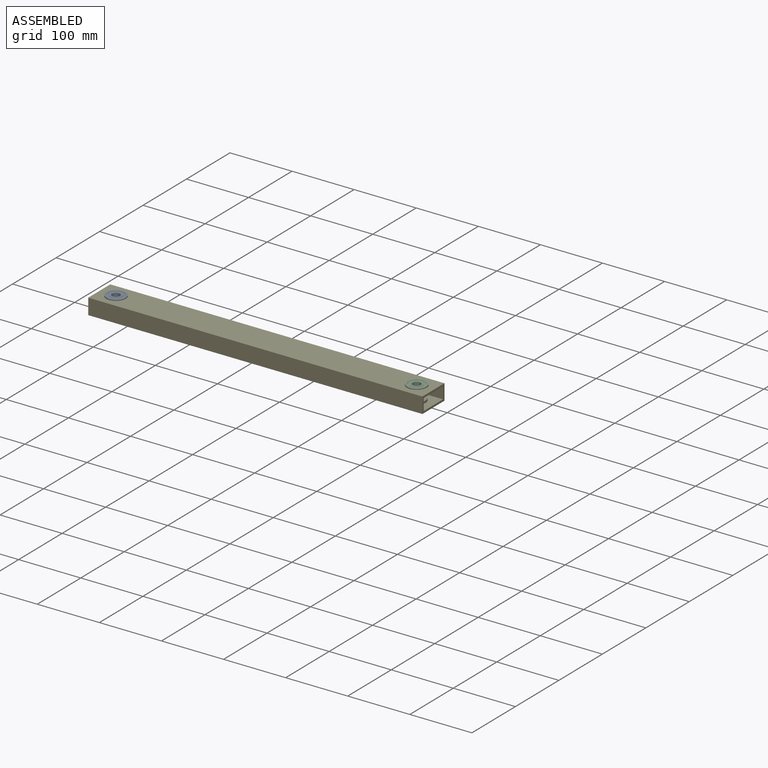
[diagram: assembled view]
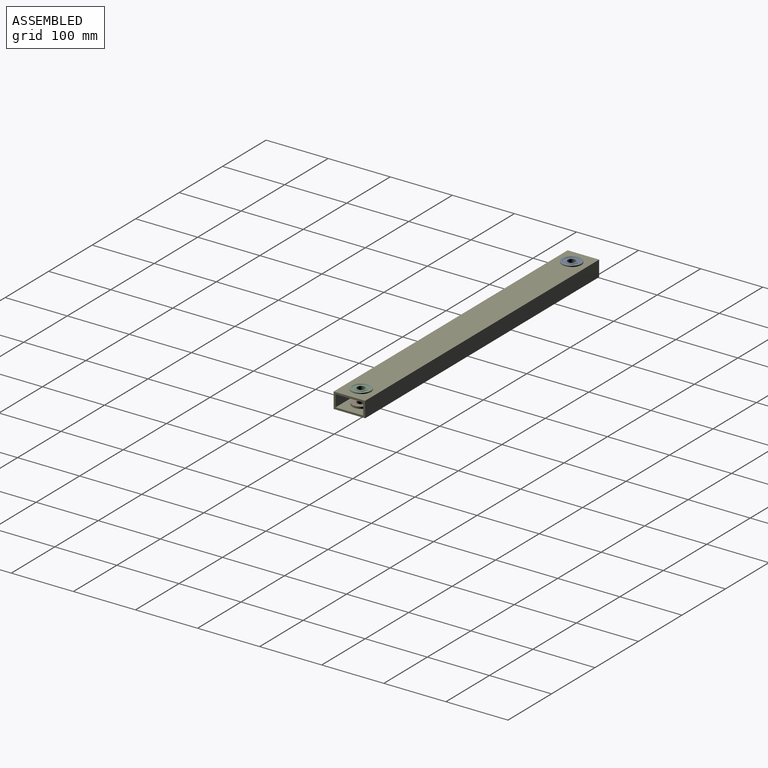
[diagram: assembled view, second angle]
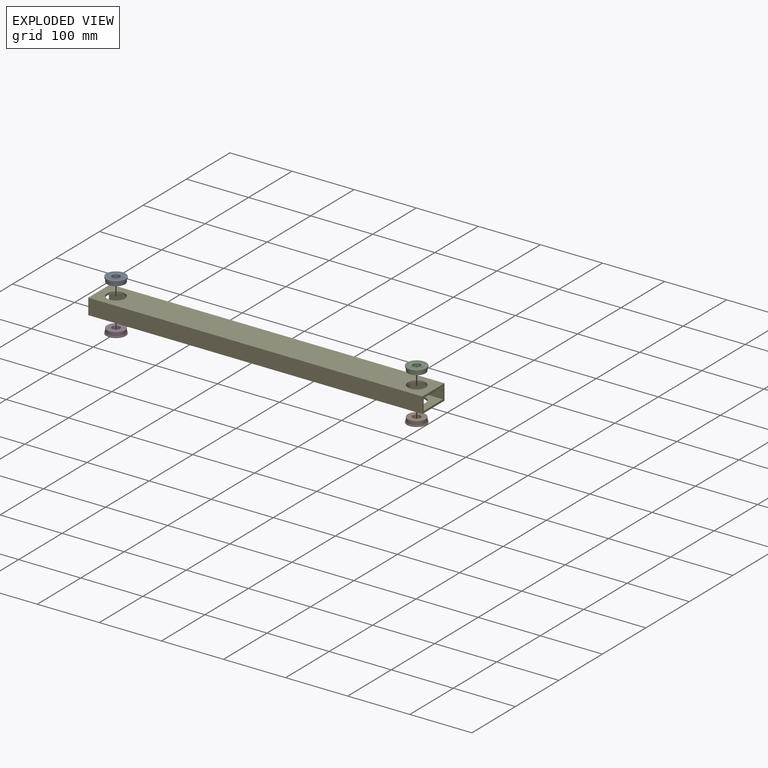
[diagram: exploded view]
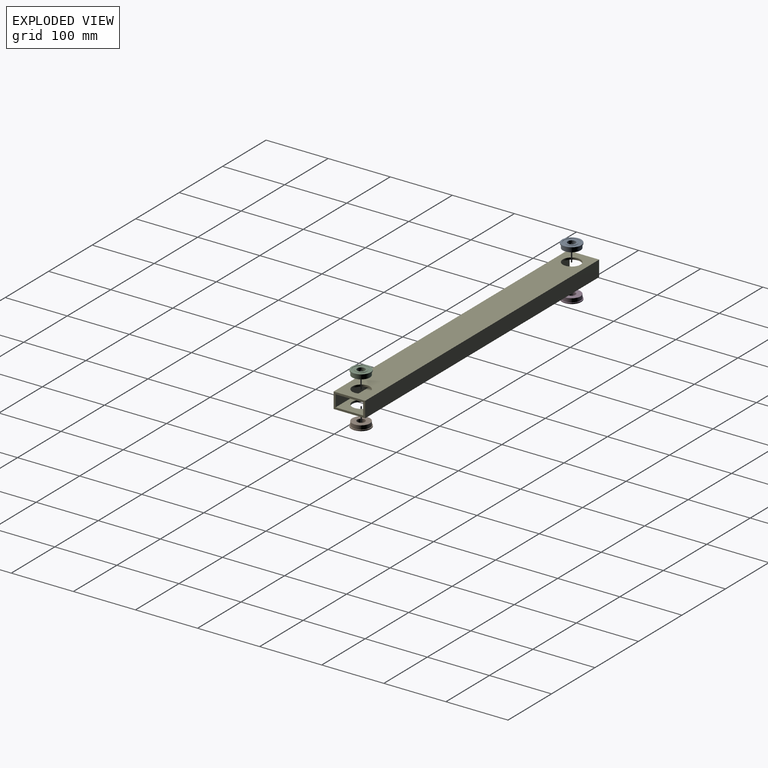
[diagram: exploded view, second angle]
ASSEMBLY  parts=5 mates=4
PART A: 10 faces, bbox 31.1x7.9x31.1 mm
  f0: cylinder r=12.7mm len=25.4mm, axis (0,1,0), area 30.4mm2, adj f8,f9
  f1: cylinder r=15.56mm len=31.12mm, axis (0,1,0), area 155.2mm2, adj f7,f8
  f2: cylinder r=14.29mm len=28.58mm, axis (0,1,0), area 570mm2, adj f6,f7
  f3: cylinder r=6.35mm len=12.7mm, axis (0,1,0), area 316.7mm2, adj f5,f6
  f4: cylinder r=9.53mm len=19.05mm, axis (0,1,0), area 22.8mm2, adj f5,f9
  f5: plane 19.05x19.05mm, normal (0,1,0), area 158.3mm2, adj f3,f4
  f6: plane 28.58x28.58mm, normal (0,-1,0), area 514.6mm2, adj f2,f3
  f7: plane 31.12x31.12mm, normal (0,-1,0), area 119.1mm2, adj f1,f2
  f8: plane 31.12x31.12mm, normal (0,1,0), area 253.7mm2, adj f0,f1
  f9: plane 25.4x25.4mm, normal (0,1,0), area 221.7mm2, adj f0,f4
PART B: same geometry as A
PART C: same geometry as A
PART D: same geometry as A
PART E: 14 faces, bbox 538.3x50.8x25.4 mm
  f0: plane 50.8x25.4mm, normal (-1,0,0), area 443.5mm2, adj f4,f5,f8,f9,f10,f11,f12,f13
  f1: cylinder r=14.29mm len=28.58mm, axis (0,0,-1), area 285mm2, adj f8,f13
  f2: cylinder r=14.29mm len=28.58mm, axis (0,0,-1), area 285mm2, adj f8,f13
  f3: plane 50.8x25.4mm, normal (1,0,0), area 443.5mm2, adj f4,f5,f8,f9,f10,f11,f12,f13
  f4: plane 538.27x25.4mm, normal (0,1,0), area 13672mm2, adj f0,f3,f8,f9
  f5: plane 538.27x25.4mm, normal (0,-1,0), area 13672mm2, adj f0,f3,f8,f9
  f6: cylinder r=14.29mm len=28.58mm, axis (0,0,-1), area 285mm2, adj f9,f11
  f7: cylinder r=14.29mm len=28.58mm, axis (0,0,-1), area 285mm2, adj f9,f11
  f8: plane 538.27x50.8mm, normal (0,0,1), area 26061.4mm2, adj f0,f1,f2,f3,f4,f5
  f9: plane 538.27x50.8mm, normal (0,0,-1), area 26061.4mm2, adj f0,f3,f4,f5,f6,f7
  f10: plane 538.27x19.05mm, normal (0,-1,0), area 10254mm2, adj f0,f3,f11,f13
  f11: plane 538.27x44.45mm, normal (0,0,1), area 22643.4mm2, adj f0,f3,f6,f7,f10,f12
  f12: plane 538.27x19.05mm, normal (0,1,0), area 10254mm2, adj f0,f3,f11,f13
  f13: plane 538.27x44.45mm, normal (0,0,-1), area 22643.4mm2, adj f0,f1,f2,f3,f10,f12
PLACE A rot(axis=(1,0,0),90deg) t=(-243.62,-28.18,-34.64)mm
PLACE B rot(axis=(-1,0,0),90deg) t=(240.67,-28.18,-47.34)mm
PLACE C rot(axis=(1,0,0),90deg) t=(240.67,-28.18,-34.64)mm
PLACE D rot(axis=(-1,0,0),90deg) t=(-243.62,-28.18,-47.34)mm
PLACE E t=(-163.67,-18.09,-53.69)mm
MATE revolute C.f0 <-> E.f2  axis (0,0,-1) through (240.67,-28.18,-28.29)mm
MATE fastened B.f0 <-> E.f2  axis (0,0,1) through (240.67,-28.18,-53.69)mm
MATE revolute A.f0 <-> E.f1  axis (0,0,-1) through (-243.62,-28.18,-28.29)mm
MATE fastened D.f0 <-> E.f1  axis (0,0,1) through (-243.62,-28.18,-53.69)mm
